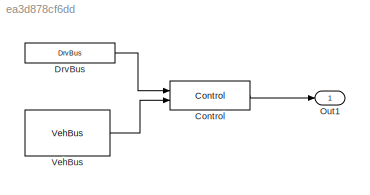
MODEL slx_ea3d878cf6dd
KIND model
CONFIG AbsTol = auto
CONFIG EnableMultiTasking = off
CONFIG FixedStep = auto
CONFIG MaxStep = auto
CONFIG MinStep = auto
CONFIG RelTol = 1e-3
CONFIG SampleTimeConstraint = Unconstrained
CONFIG SolverName = VariableStepAuto
CONFIG StartTime = 0.0
CONFIG StopTime = 10.0
BLOCK [Reference] Control  REF=sm_car_lib/Control/Control  (lib defined in slx_05426f0848b6, slx_5dc2867fb1c9)
  AttributesFormatString = %<popup_brake_control>
  Ports = [2, 1]
  SourceBlock = sm_car_lib/Control/Control
BLOCK [Reference] DrvBus  REF=sm_car_lib/Inputs/DrvBus  (lib defined in slx_05426f0848b6, slx_5dc2867fb1c9)
  Ports = [0, 1]
  SourceBlock = sm_car_lib/Inputs/DrvBus
  SourceType = SubSystem
BLOCK [Outport] Out1
  AttributesFormatString = %<OutDataTypeStr>
  OutDataTypeStr = Bus: ControllerBusDef
  VectorParamsAs1DForOutWhenUnconnected = off
BLOCK [Reference] VehBus  REF=sm_car_lib/Outputs/VehBus  (lib defined in slx_05426f0848b6, slx_5dc2867fb1c9)
  Ports = [0, 1]
  SourceBlock = sm_car_lib/Outputs/VehBus
  SourceType = SubSystem
LINE Control:1 -> Out1:1
LINE DrvBus:1 -> Control:1
LINE VehBus:1 -> Control:2
